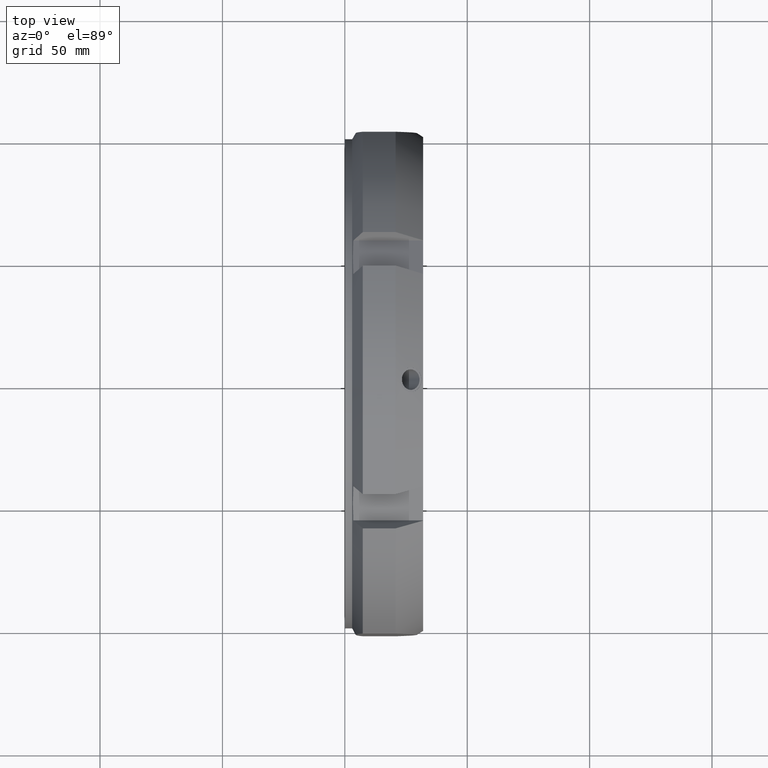
[diagram: clean part render]
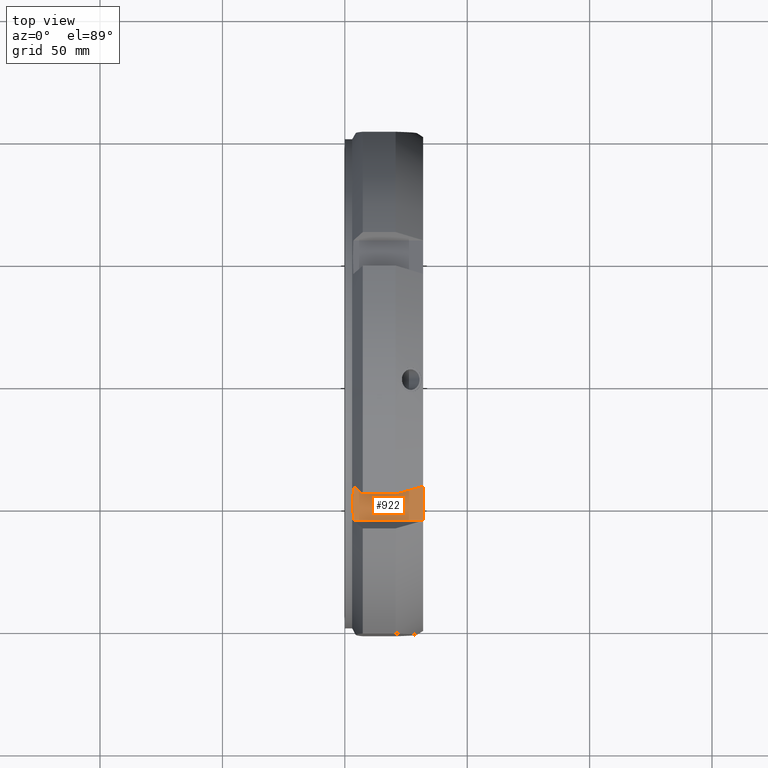
[diagram: same view with one face highlighted and labeled with its STEP entity id]
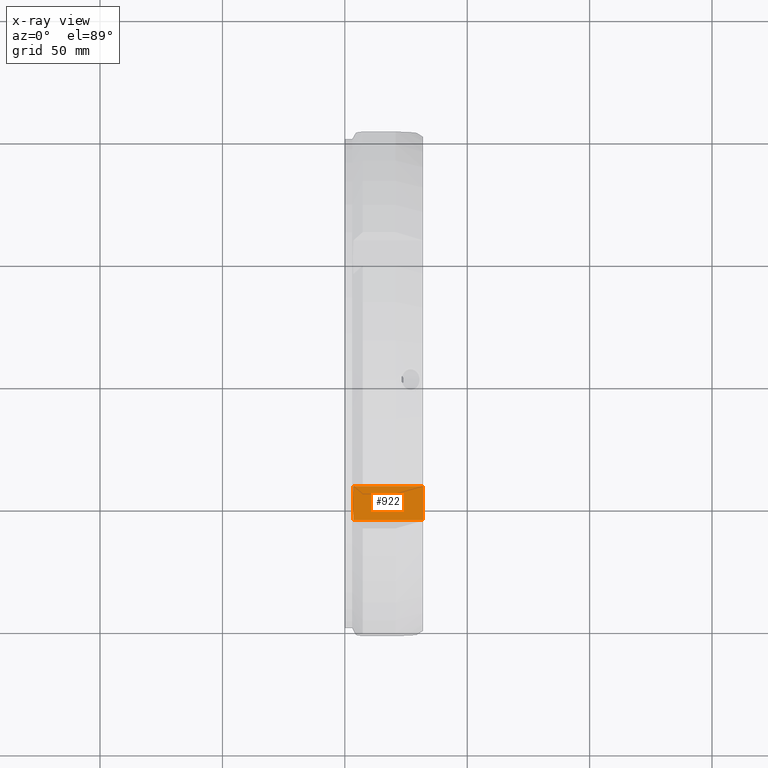
[diagram: x-ray of the same camera — body ghosted, the highlighted face saturated]
A machine part, top view. The second image highlights one B-rep face of the part: STEP entity #922.
The next image is the same camera in x-ray: the body ghosted, the highlighted face saturated — about 0% of this face is hidden behind the body in this view.
In plain terms, the highlighted planar face has unit normal (0, 0.5, -0.866).
Its self-contained STEP definition (entity closure, byte-faithful):
#424=CARTESIAN_POINT('',(31.999999999999979,-43.321796769724585,91.035553080336044));
#425=VERTEX_POINT('',#424);
#432=CARTESIAN_POINT('',(31.999999999999979,-57.178203230275599,83.03555308033603));
#433=VERTEX_POINT('',#432);
#434=CARTESIAN_POINT('',(31.999999999999975,-43.321796769724585,91.035553080336044));
#435=DIRECTION('',(0.0,-0.866025403784438,-0.500000000000001));
#436=VECTOR('',#435,16.000000000000004);
#437=LINE('',#434,#436);
#438=EDGE_CURVE('',#425,#433,#437,.T.);
#844=CARTESIAN_POINT('',(3.472217761861565,-43.321796769724585,91.035553080336044));
#845=VERTEX_POINT('',#844);
#861=CARTESIAN_POINT('',(3.472217761861565,-43.321796769724585,91.035553080336044));
#862=DIRECTION('',(1.0,0.0,0.0));
#863=VECTOR('',#862,28.527782238138414);
#864=LINE('',#861,#863);
#865=EDGE_CURVE('',#845,#425,#864,.T.);
#892=CARTESIAN_POINT('',(0.0,-57.178203230275599,83.03555308033603));
#893=DIRECTION('',(0.0,0.5,-0.866025403784438));
#894=DIRECTION('',(0.0,0.866025403784438,0.5));
#895=AXIS2_PLACEMENT_3D('',#892,#893,#894);
#896=PLANE('',#895);
#897=CARTESIAN_POINT('',(3.472217761861564,-57.178203230275599,83.03555308033603));
#898=VERTEX_POINT('',#897);
#899=CARTESIAN_POINT('',(3.472217761861564,-57.178203230275599,83.03555308033603));
#900=CARTESIAN_POINT('',(3.105711265134599,-50.249999999833847,87.03555308043201));
#901=CARTESIAN_POINT('',(3.472217761861565,-43.321796769724585,91.035553080336044));
#909=(BOUNDED_CURVE()B_SPLINE_CURVE(2,(#899,#900,#901),.UNSPECIFIED.,.F.,.U.)B_SPLINE_CURVE_WITH_KNOTS((3,3),(3.00592300673729,4.66827619144183),.UNSPECIFIED.)CURVE()GEOMETRIC_REPRESENTATION_ITEM()RATIONAL_B_SPLINE_CURVE((1.033191756287483,1.03645998500605,1.033191756287483))REPRESENTATION_ITEM(''));
#910=EDGE_CURVE('',#898,#845,#909,.T.);
#911=ORIENTED_EDGE('',*,*,#910,.F.);
#912=CARTESIAN_POINT('',(3.472217761861564,-57.178203230275599,83.03555308033603));
#913=DIRECTION('',(1.0,0.0,0.0));
#914=VECTOR('',#913,28.527782238138414);
#915=LINE('',#912,#914);
#916=EDGE_CURVE('',#898,#433,#915,.T.);
#917=ORIENTED_EDGE('',*,*,#916,.T.);
#918=ORIENTED_EDGE('',*,*,#438,.F.);
#919=ORIENTED_EDGE('',*,*,#865,.F.);
#920=EDGE_LOOP('',(#911,#917,#918,#919));
#921=FACE_OUTER_BOUND('',#920,.T.);
#922=ADVANCED_FACE('',(#921),#896,.F.);